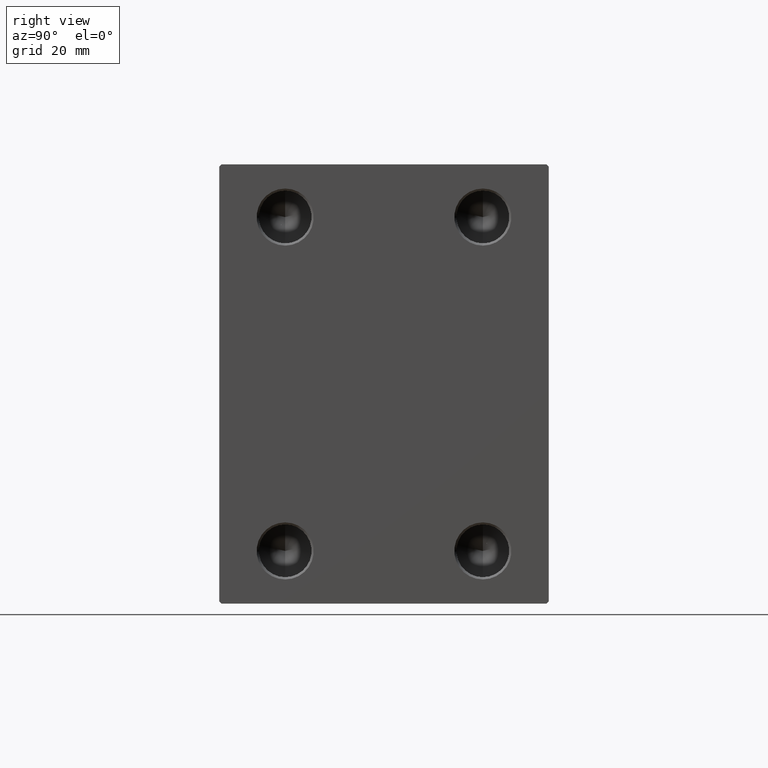
[diagram: clean part render]
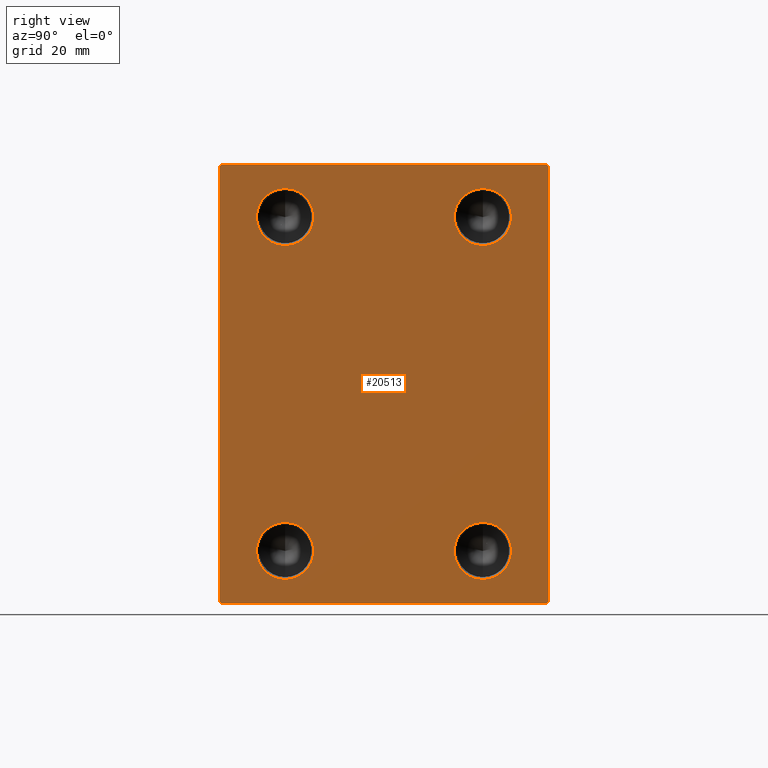
[diagram: same view with one face highlighted and labeled with its STEP entity id]
A machine part, right view. The second image highlights one B-rep face of the part: STEP entity #20513.
In plain terms, the highlighted planar face has unit normal (1, 0, 0).
Its self-contained STEP definition (entity closure, byte-faithful):
#516 = CARTESIAN_POINT ( 'NONE',  ( 98.00000000000000000, 43.49999999999974420, 43.50000000000035527 ) ) ;
#596 = PLANE ( 'NONE',  #17525 ) ;
#846 = DIRECTION ( 'NONE',  ( 1.000000000000000000, -0.000000000000000000, -0.000000000000000000 ) ) ;
#1436 = AXIS2_PLACEMENT_3D ( 'NONE', #21445, #27746, #14041 ) ;
#2830 = VERTEX_POINT ( 'NONE', #43342 ) ;
#3130 = CARTESIAN_POINT ( 'NONE',  ( 98.00000000000000000, -43.49999999999972999, 43.50000000000034106 ) ) ;
#3577 = EDGE_CURVE ( 'NONE', #17528, #27201, #20855, .T. ) ;
#3583 = ORIENTED_EDGE ( 'NONE', *, *, #20816, .F. ) ;
#3590 = EDGE_LOOP ( 'NONE', ( #27591, #3583 ) ) ;
#3778 = DIRECTION ( 'NONE',  ( 0.000000000000000000, -0.7071067811865525687, -0.7071067811865425767 ) ) ;
#3825 = DIRECTION ( 'NONE',  ( 1.000000000000000000, -0.000000000000000000, -0.000000000000000000 ) ) ;
#4142 = CARTESIAN_POINT ( 'NONE',  ( 98.00000000000000000, -22.50000000000000000, 37.99999999999999289 ) ) ;
#4145 = DIRECTION ( 'NONE',  ( 0.000000000000000000, 0.000000000000000000, -1.000000000000000000 ) ) ;
#4296 = VERTEX_POINT ( 'NONE', #33138 ) ;
#4558 = DIRECTION ( 'NONE',  ( -0.000000000000000000, -0.7071067811865525687, 0.7071067811865425767 ) ) ;
#4811 = ORIENTED_EDGE ( 'NONE', *, *, #42162, .F. ) ;
#4984 = EDGE_CURVE ( 'NONE', #7999, #20215, #5459, .T. ) ;
#5305 = VECTOR ( 'NONE', #16982, 1000.000000000000000 ) ;
#5459 = CIRCLE ( 'NONE', #30583, 6.499999999999992006 ) ;
#5917 = VERTEX_POINT ( 'NONE', #19673 ) ;
#6456 = LINE ( 'NONE', #17040, #13797 ) ;
#6592 = CARTESIAN_POINT ( 'NONE',  ( 98.00000000000000000, -37.50000000000000000, -49.49999999999997158 ) ) ;
#6639 = DIRECTION ( 'NONE',  ( 1.000000000000000000, -0.000000000000000000, -0.000000000000000000 ) ) ;
#6914 = FACE_BOUND ( 'NONE', #3590, .T. ) ;
#7345 = VECTOR ( 'NONE', #38859, 1000.000000000000000 ) ;
#7734 = VERTEX_POINT ( 'NONE', #37026 ) ;
#7788 = DIRECTION ( 'NONE',  ( 1.000000000000000000, 0.000000000000000000, 0.000000000000000000 ) ) ;
#7999 = VERTEX_POINT ( 'NONE', #9537 ) ;
#8832 = CIRCLE ( 'NONE', #33268, 6.499999999999992006 ) ;
#9012 = LINE ( 'NONE', #18483, #31608 ) ;
#9020 = ORIENTED_EDGE ( 'NONE', *, *, #15937, .T. ) ;
#9537 = CARTESIAN_POINT ( 'NONE',  ( 98.00000000000000000, -22.50000000000000000, -31.50000000000001421 ) ) ;
#10110 = CARTESIAN_POINT ( 'NONE',  ( 98.00000000000000000, -22.50000000000000000, -44.50000000000000000 ) ) ;
#10246 = AXIS2_PLACEMENT_3D ( 'NONE', #43161, #12376, #35761 ) ;
#10408 = EDGE_CURVE ( 'NONE', #40716, #10556, #12938, .T. ) ;
#10556 = VERTEX_POINT ( 'NONE', #23462 ) ;
#10581 = CARTESIAN_POINT ( 'NONE',  ( 98.00000000000000000, 22.50000000000000000, -38.00000000000000711 ) ) ;
#10780 = EDGE_CURVE ( 'NONE', #31035, #17528, #9012, .T. ) ;
#10790 = DIRECTION ( 'NONE',  ( 0.000000000000000000, 0.000000000000000000, -1.000000000000000000 ) ) ;
#11094 = VERTEX_POINT ( 'NONE', #37656 ) ;
#11945 = DIRECTION ( 'NONE',  ( 0.000000000000000000, 0.000000000000000000, -1.000000000000000000 ) ) ;
#12027 = ORIENTED_EDGE ( 'NONE', *, *, #10780, .T. ) ;
#12376 = DIRECTION ( 'NONE',  ( 1.000000000000000000, -0.000000000000000000, -0.000000000000000000 ) ) ;
#12683 = VECTOR ( 'NONE', #3778, 999.9999999999998863 ) ;
#12938 = CIRCLE ( 'NONE', #1436, 6.499999999999992006 ) ;
#13135 = DIRECTION ( 'NONE',  ( 0.000000000000000000, 1.000000000000000000, 0.000000000000000000 ) ) ;
#13297 = EDGE_LOOP ( 'NONE', ( #9020, #27401, #12027, #15618, #13488, #34805, #16284, #39065 ) ) ;
#13488 = ORIENTED_EDGE ( 'NONE', *, *, #31777, .T. ) ;
#13542 = EDGE_CURVE ( 'NONE', #4296, #11094, #31335, .T. ) ;
#13589 = LINE ( 'NONE', #19917, #5305 ) ;
#13649 = DIRECTION ( 'NONE',  ( 0.000000000000000000, -1.000000000000000000, -2.775557561562891844E-16 ) ) ;
#13797 = VECTOR ( 'NONE', #13649, 1000.000000000000000 ) ;
#14041 = DIRECTION ( 'NONE',  ( 0.000000000000000000, 0.000000000000000000, -1.000000000000000000 ) ) ;
#15618 = ORIENTED_EDGE ( 'NONE', *, *, #3577, .T. ) ;
#15937 = EDGE_CURVE ( 'NONE', #11094, #2830, #6456, .T. ) ;
#16106 = VECTOR ( 'NONE', #17716, 1000.000000000000114 ) ;
#16150 = DIRECTION ( 'NONE',  ( 0.000000000000000000, 0.000000000000000000, -1.000000000000000000 ) ) ;
#16284 = ORIENTED_EDGE ( 'NONE', *, *, #43896, .T. ) ;
#16796 = CIRCLE ( 'NONE', #19688, 6.499999999999992006 ) ;
#16895 = EDGE_LOOP ( 'NONE', ( #42645, #4811 ) ) ;
#16982 = DIRECTION ( 'NONE',  ( 0.000000000000000000, -1.387778780781445676E-16, 1.000000000000000000 ) ) ;
#17040 = CARTESIAN_POINT ( 'NONE',  ( 98.00000000000000000, 37.49999999999999289, 50.00000000000000711 ) ) ;
#17129 = DIRECTION ( 'NONE',  ( 0.000000000000000000, 0.000000000000000000, -1.000000000000000000 ) ) ;
#17446 = CIRCLE ( 'NONE', #10246, 6.499999999999992006 ) ;
#17473 = AXIS2_PLACEMENT_3D ( 'NONE', #10581, #20280, #17129 ) ;
#17525 = AXIS2_PLACEMENT_3D ( 'NONE', #21297, #7788, #27816 ) ;
#17528 = VERTEX_POINT ( 'NONE', #6592 ) ;
#17716 = DIRECTION ( 'NONE',  ( -0.000000000000000000, 0.7071067811865474617, -0.7071067811865474617 ) ) ;
#17936 = CARTESIAN_POINT ( 'NONE',  ( 98.00000000000000000, -43.50000000000000711, -43.50000000000000711 ) ) ;
#18483 = CARTESIAN_POINT ( 'NONE',  ( 98.00000000000000000, -37.50000000000000000, 49.99999999999998579 ) ) ;
#18922 = AXIS2_PLACEMENT_3D ( 'NONE', #35295, #3825, #10790 ) ;
#19000 = AXIS2_PLACEMENT_3D ( 'NONE', #31666, #846, #16150 ) ;
#19673 = CARTESIAN_POINT ( 'NONE',  ( 98.00000000000000000, -22.50000000000000000, 44.49999999999998579 ) ) ;
#19688 = AXIS2_PLACEMENT_3D ( 'NONE', #4142, #6639, #37666 ) ;
#19870 = EDGE_CURVE ( 'NONE', #20215, #7999, #36137, .T. ) ;
#19917 = CARTESIAN_POINT ( 'NONE',  ( 98.00000000000000000, 37.50000000000000711, -50.00000000000000000 ) ) ;
#20215 = VERTEX_POINT ( 'NONE', #10110 ) ;
#20280 = DIRECTION ( 'NONE',  ( 1.000000000000000000, -0.000000000000000000, -0.000000000000000000 ) ) ;
#20513 = ADVANCED_FACE ( 'NONE', ( #38599, #6914, #30967, #24436, #31630 ), #596, .T. ) ;
#20646 = ORIENTED_EDGE ( 'NONE', *, *, #40296, .F. ) ;
#20816 = EDGE_CURVE ( 'NONE', #32266, #5917, #16796, .T. ) ;
#20855 = LINE ( 'NONE', #17936, #16106 ) ;
#21297 = CARTESIAN_POINT ( 'NONE',  ( 98.00000000000000000, 0.000000000000000000, 0.000000000000000000 ) ) ;
#21445 = CARTESIAN_POINT ( 'NONE',  ( 98.00000000000000000, 22.50000000000000000, 37.99999999999999289 ) ) ;
#21468 = CARTESIAN_POINT ( 'NONE',  ( 98.00000000000000000, -22.50000000000000000, -38.00000000000000711 ) ) ;
#21800 = CARTESIAN_POINT ( 'NONE',  ( 98.00000000000000000, 37.50000000000000711, -49.50000000000001421 ) ) ;
#23149 = VERTEX_POINT ( 'NONE', #33234 ) ;
#23383 = CARTESIAN_POINT ( 'NONE',  ( 98.00000000000000000, 37.00000000000001421, -50.00000000000000000 ) ) ;
#23462 = CARTESIAN_POINT ( 'NONE',  ( 98.00000000000000000, 22.50000000000000000, 44.49999999999998579 ) ) ;
#24436 = FACE_BOUND ( 'NONE', #16895, .T. ) ;
#24936 = DIRECTION ( 'NONE',  ( 0.000000000000000000, 0.000000000000000000, -1.000000000000000000 ) ) ;
#25944 = VECTOR ( 'NONE', #4558, 999.9999999999998863 ) ;
#26855 = CARTESIAN_POINT ( 'NONE',  ( 98.00000000000000000, -37.50000000000000000, -50.00000000000000000 ) ) ;
#26969 = LINE ( 'NONE', #3130, #12683 ) ;
#27201 = VERTEX_POINT ( 'NONE', #42004 ) ;
#27401 = ORIENTED_EDGE ( 'NONE', *, *, #32422, .T. ) ;
#27591 = ORIENTED_EDGE ( 'NONE', *, *, #41301, .F. ) ;
#27746 = DIRECTION ( 'NONE',  ( 1.000000000000000000, -0.000000000000000000, -0.000000000000000000 ) ) ;
#27816 = DIRECTION ( 'NONE',  ( 0.000000000000000000, 0.000000000000000000, -1.000000000000000000 ) ) ;
#28204 = DIRECTION ( 'NONE',  ( 1.000000000000000000, -0.000000000000000000, -0.000000000000000000 ) ) ;
#28261 = ORIENTED_EDGE ( 'NONE', *, *, #19870, .F. ) ;
#29417 = CARTESIAN_POINT ( 'NONE',  ( 98.00000000000000000, 43.49999999999974420, -43.50000000000034817 ) ) ;
#30123 = CARTESIAN_POINT ( 'NONE',  ( 98.00000000000000000, -22.50000000000000000, 31.50000000000000000 ) ) ;
#30583 = AXIS2_PLACEMENT_3D ( 'NONE', #21468, #28204, #4145 ) ;
#30967 = FACE_BOUND ( 'NONE', #39022, .T. ) ;
#31035 = VERTEX_POINT ( 'NONE', #34243 ) ;
#31335 = LINE ( 'NONE', #516, #25944 ) ;
#31608 = VECTOR ( 'NONE', #11945, 1000.000000000000000 ) ;
#31630 = FACE_OUTER_BOUND ( 'NONE', #13297, .T. ) ;
#31666 = CARTESIAN_POINT ( 'NONE',  ( 98.00000000000000000, 22.50000000000000000, -38.00000000000000711 ) ) ;
#31777 = EDGE_CURVE ( 'NONE', #27201, #42378, #43916, .T. ) ;
#32051 = ORIENTED_EDGE ( 'NONE', *, *, #4984, .F. ) ;
#32266 = VERTEX_POINT ( 'NONE', #30123 ) ;
#32422 = EDGE_CURVE ( 'NONE', #2830, #31035, #26969, .T. ) ;
#33138 = CARTESIAN_POINT ( 'NONE',  ( 98.00000000000000000, 37.49999999999999289, 49.50000000000002842 ) ) ;
#33234 = CARTESIAN_POINT ( 'NONE',  ( 98.00000000000000000, 22.50000000000000000, -44.50000000000000000 ) ) ;
#33268 = AXIS2_PLACEMENT_3D ( 'NONE', #34829, #38425, #24936 ) ;
#34243 = CARTESIAN_POINT ( 'NONE',  ( 98.00000000000000000, -37.50000000000000000, 49.49999999999998579 ) ) ;
#34693 = CIRCLE ( 'NONE', #17473, 6.499999999999992006 ) ;
#34805 = ORIENTED_EDGE ( 'NONE', *, *, #40506, .T. ) ;
#34829 = CARTESIAN_POINT ( 'NONE',  ( 98.00000000000000000, -22.50000000000000000, 37.99999999999999289 ) ) ;
#35295 = CARTESIAN_POINT ( 'NONE',  ( 98.00000000000000000, -22.50000000000000000, -38.00000000000000711 ) ) ;
#35761 = DIRECTION ( 'NONE',  ( 0.000000000000000000, 0.000000000000000000, -1.000000000000000000 ) ) ;
#36137 = CIRCLE ( 'NONE', #18922, 6.499999999999992006 ) ;
#36160 = LINE ( 'NONE', #29417, #7345 ) ;
#37026 = CARTESIAN_POINT ( 'NONE',  ( 98.00000000000000000, 22.50000000000000000, -31.50000000000001421 ) ) ;
#37065 = VERTEX_POINT ( 'NONE', #21800 ) ;
#37102 = EDGE_LOOP ( 'NONE', ( #20646, #37504 ) ) ;
#37504 = ORIENTED_EDGE ( 'NONE', *, *, #10408, .F. ) ;
#37656 = CARTESIAN_POINT ( 'NONE',  ( 98.00000000000000000, 37.00000000000000711, 50.00000000000000711 ) ) ;
#37666 = DIRECTION ( 'NONE',  ( 0.000000000000000000, 0.000000000000000000, -1.000000000000000000 ) ) ;
#38138 = CARTESIAN_POINT ( 'NONE',  ( 98.00000000000000000, 22.50000000000000000, 31.50000000000000000 ) ) ;
#38425 = DIRECTION ( 'NONE',  ( 1.000000000000000000, -0.000000000000000000, -0.000000000000000000 ) ) ;
#38599 = FACE_BOUND ( 'NONE', #37102, .T. ) ;
#38859 = DIRECTION ( 'NONE',  ( -0.000000000000000000, 0.7071067811865524577, 0.7071067811865426878 ) ) ;
#39022 = EDGE_LOOP ( 'NONE', ( #32051, #28261 ) ) ;
#39065 = ORIENTED_EDGE ( 'NONE', *, *, #13542, .T. ) ;
#40296 = EDGE_CURVE ( 'NONE', #10556, #40716, #17446, .T. ) ;
#40506 = EDGE_CURVE ( 'NONE', #42378, #37065, #36160, .T. ) ;
#40716 = VERTEX_POINT ( 'NONE', #38138 ) ;
#41301 = EDGE_CURVE ( 'NONE', #5917, #32266, #8832, .T. ) ;
#42004 = CARTESIAN_POINT ( 'NONE',  ( 98.00000000000000000, -37.00000000000000000, -50.00000000000000000 ) ) ;
#42090 = VECTOR ( 'NONE', #13135, 1000.000000000000000 ) ;
#42162 = EDGE_CURVE ( 'NONE', #23149, #7734, #34693, .T. ) ;
#42378 = VERTEX_POINT ( 'NONE', #23383 ) ;
#42645 = ORIENTED_EDGE ( 'NONE', *, *, #43486, .F. ) ;
#43161 = CARTESIAN_POINT ( 'NONE',  ( 98.00000000000000000, 22.50000000000000000, 37.99999999999999289 ) ) ;
#43342 = CARTESIAN_POINT ( 'NONE',  ( 98.00000000000000000, -36.99999999999999289, 49.99999999999998579 ) ) ;
#43486 = EDGE_CURVE ( 'NONE', #7734, #23149, #44089, .T. ) ;
#43896 = EDGE_CURVE ( 'NONE', #37065, #4296, #13589, .T. ) ;
#43916 = LINE ( 'NONE', #26855, #42090 ) ;
#44089 = CIRCLE ( 'NONE', #19000, 6.499999999999992006 ) ;